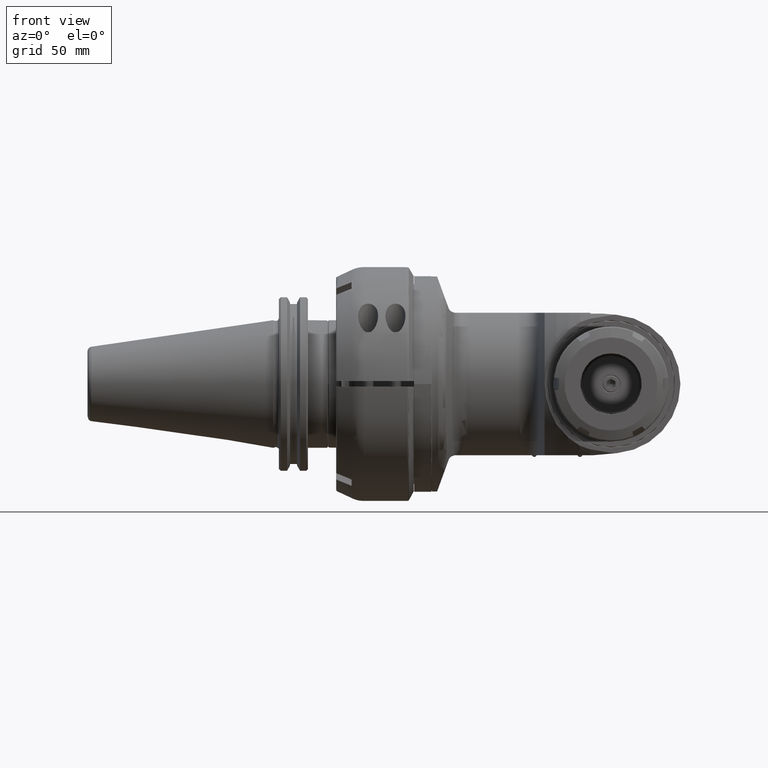
[diagram: clean part render]
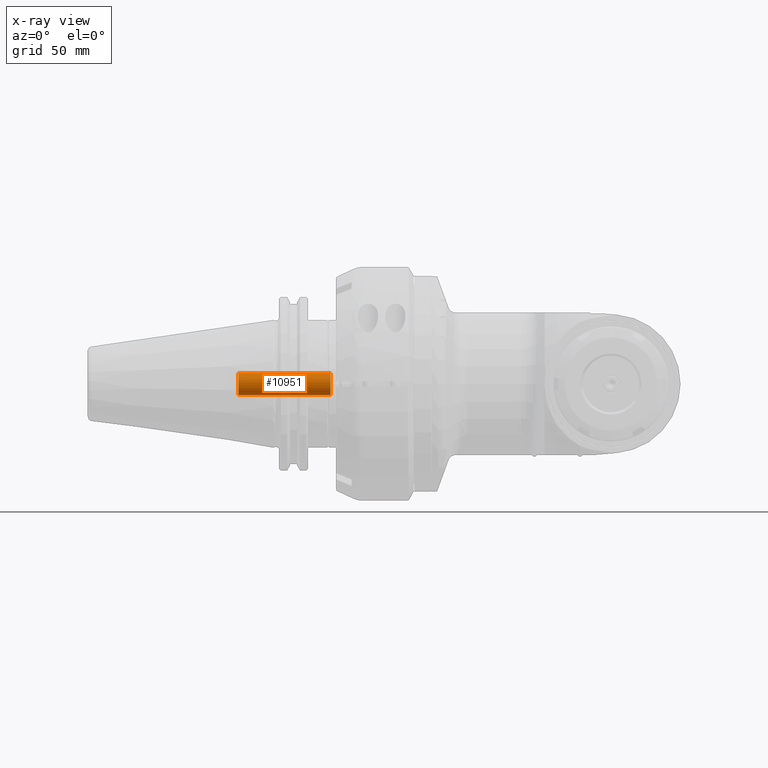
[diagram: x-ray — body ghosted, one internal face saturated and labeled with its STEP entity id]
A machine part, front view, then the same camera in x-ray: the body is ghosted and one INTERNAL B-rep face — a face not visible from any outside direction — is saturated and labeled: STEP entity #10951.
In plain terms, the highlighted cylindrical surface (bore or boss wall) has radius 6 mm, axis along (-1, 0, 0).
Its self-contained STEP definition (entity closure, byte-faithful):
#492=LINE('',#16756,#1233);
#1233=VECTOR('',#13102,6.);
#1967=CYLINDRICAL_SURFACE('',#11671,6.);
#2297=FACE_OUTER_BOUND('',#2981,.T.);
#2981=EDGE_LOOP('',(#7268,#7269,#7270,#7271));
#3754=CIRCLE('',#11670,6.);
#3755=CIRCLE('',#11672,6.);
#4418=VERTEX_POINT('',#16752);
#4419=VERTEX_POINT('',#16755);
#5529=EDGE_CURVE('',#4418,#4418,#3754,.T.);
#5530=EDGE_CURVE('',#4418,#4419,#492,.T.);
#5531=EDGE_CURVE('',#4419,#4419,#3755,.T.);
#7268=ORIENTED_EDGE('',*,*,#5529,.F.);
#7269=ORIENTED_EDGE('',*,*,#5530,.T.);
#7270=ORIENTED_EDGE('',*,*,#5531,.T.);
#7271=ORIENTED_EDGE('',*,*,#5530,.F.);
#10951=ADVANCED_FACE('',(#2297),#1967,.T.);
#11670=AXIS2_PLACEMENT_3D('',#16753,#13098,#13099);
#11671=AXIS2_PLACEMENT_3D('',#16754,#13100,#13101);
#11672=AXIS2_PLACEMENT_3D('',#16757,#13103,#13104);
#13098=DIRECTION('center_axis',(-1.,0.,0.));
#13099=DIRECTION('ref_axis',(0.,0.,-1.));
#13100=DIRECTION('center_axis',(-1.,0.,0.));
#13101=DIRECTION('ref_axis',(0.,0.,1.));
#13102=DIRECTION('',(1.,0.,0.));
#13103=DIRECTION('center_axis',(-1.,0.,0.));
#13104=DIRECTION('ref_axis',(0.,0.,-1.));
#16752=CARTESIAN_POINT('',(-96.09999976923,0.,-6.));
#16753=CARTESIAN_POINT('Origin',(-96.09999976923,0.,0.));
#16754=CARTESIAN_POINT('Origin',(-21.99999976923,0.,0.));
#16755=CARTESIAN_POINT('',(-45.5,0.,-6.));
#16756=CARTESIAN_POINT('',(-21.99999976923,-7.34788079488412E-16,-6.));
#16757=CARTESIAN_POINT('Origin',(-45.5,0.,0.));